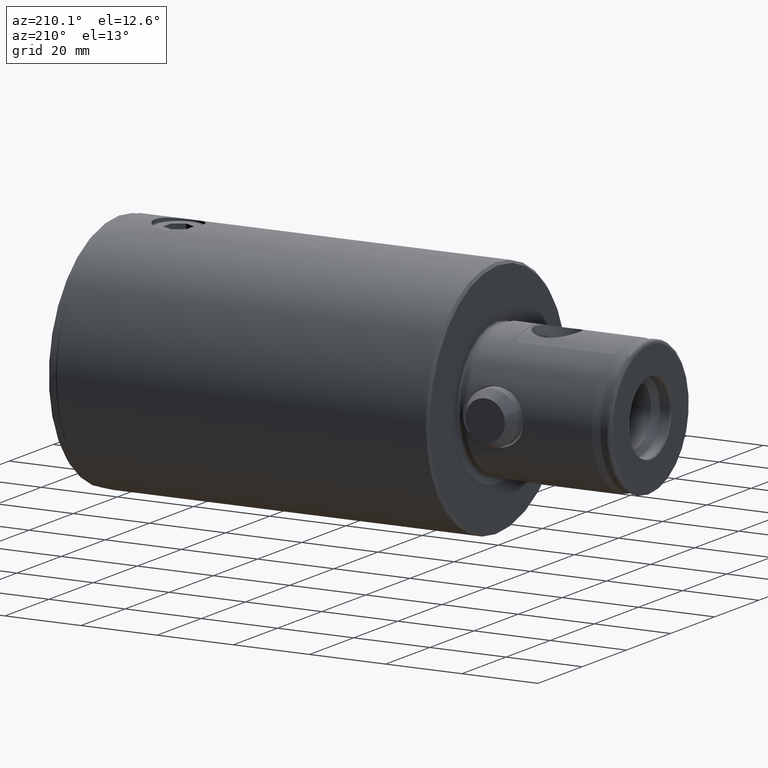
[diagram: clean part render]
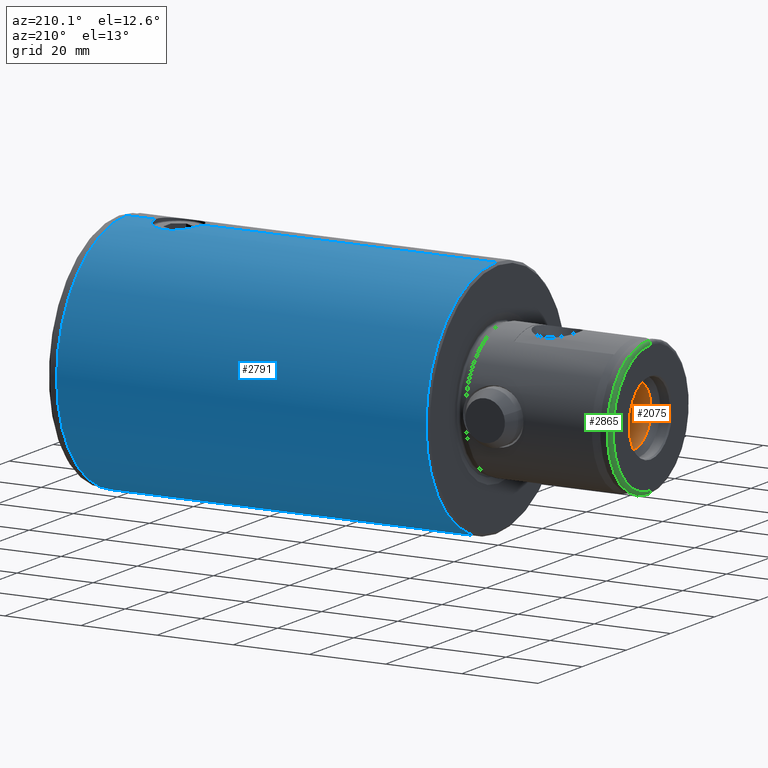
[diagram: same view with three faces highlighted in distinct colors, each labeled with its STEP entity id]
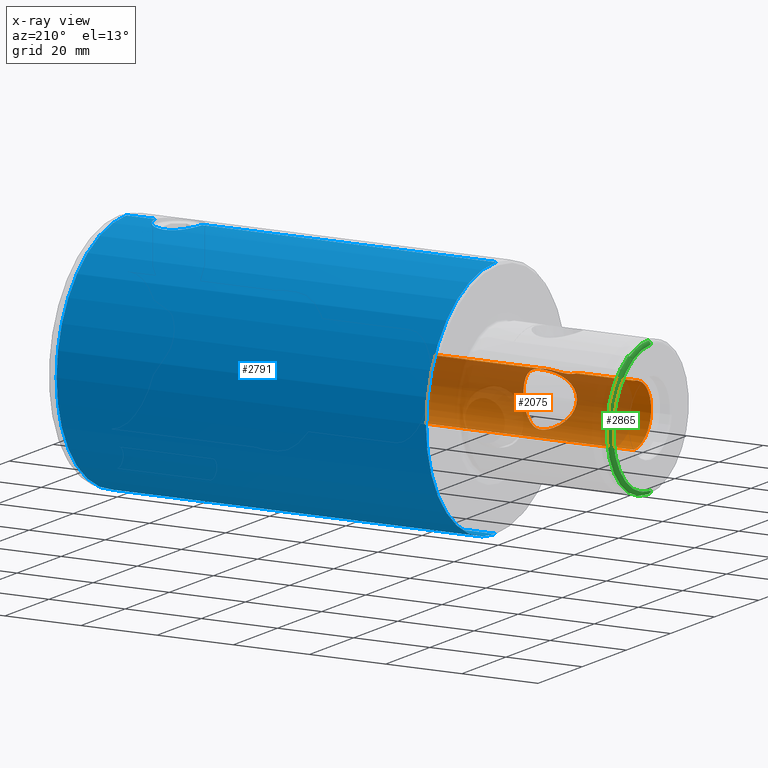
[diagram: x-ray of the same camera — body ghosted, the three highlighted faces saturated]
A machine part, auxiliary view with three faces highlighted in distinct colors.
The next image is the same camera in x-ray (body ghosted, the three faces saturated) — at least one of them is partly hidden behind the body in this view.
Their STEP definitions:

[orange] entity #2075 — the highlighted cylindrical surface (edge-blend (fillet) strip) has radius 8 mm, axis along (-1, 0, 0).
#27 = CARTESIAN_POINT ( 'NONE',  ( 4.204993759022039000, -6.808998747621740400, 103.3993214983673600 ) ) ;
#70 = CARTESIAN_POINT ( 'NONE',  ( 7.982695283076967700, -0.6025947120853478700, 111.0305637703709700 ) ) ;
#77 = CARTESIAN_POINT ( 'NONE',  ( 0.2463674248415607400, -7.999999999999974200, 102.0000000000000000 ) ) ;
#121 = VERTEX_POINT ( 'NONE', #2846 ) ;
#147 = VERTEX_POINT ( 'NONE', #3980 ) ;
#207 = ORIENTED_EDGE ( 'NONE', *, *, #1559, .T. ) ;
#225 = CARTESIAN_POINT ( 'NONE',  ( -6.609078892004234300, -4.509462832371691700, 111.3175742088378100 ) ) ;
#226 = VECTOR ( 'NONE', #2144, 1000.000000000000000 ) ;
#274 = CARTESIAN_POINT ( 'NONE',  ( -6.892891581927741200, -4.061692254694516000, 107.7573093214951400 ) ) ;
#277 = AXIS2_PLACEMENT_3D ( 'NONE', #2692, #2723, #399 ) ;
#358 = EDGE_CURVE ( 'NONE', #147, #2336, #4653, .T. ) ;
#388 = CARTESIAN_POINT ( 'NONE',  ( 6.748001086584908500, -4.301229581459347500, 107.0798754998001400 ) ) ;
#399 = DIRECTION ( 'NONE',  ( 1.000000000000000000, 0.0000000000000000000, 0.0000000000000000000 ) ) ;
#406 = CARTESIAN_POINT ( 'NONE',  ( 3.653169987805635600, -7.120640764517208500, 114.9755528362943400 ) ) ;
#436 = CARTESIAN_POINT ( 'NONE',  ( 7.426051057279917900, -2.983728094912790700, 112.1191968104907900 ) ) ;
#444 = CARTESIAN_POINT ( 'NONE',  ( 6.610445899365410000, -4.515091856288076000, 106.6560188854934100 ) ) ;
#462 = CARTESIAN_POINT ( 'NONE',  ( 6.897551808163942900, -4.053715630958561400, 110.2161564655569600 ) ) ;
#473 = VECTOR ( 'NONE', #4520, 1000.000000000000000 ) ;
#500 = CARTESIAN_POINT ( 'NONE',  ( 7.999999999999976000, 2.473867798773093000E-024, 120.0000000000000100 ) ) ;
#573 = CARTESIAN_POINT ( 'NONE',  ( 8.573049420371337400E-016, -7.999999999999976000, 102.0000000000000000 ) ) ;
#582 = ORIENTED_EDGE ( 'NONE', *, *, #1170, .T. ) ;
#597 = CARTESIAN_POINT ( 'NONE',  ( 8.573049420371337400E-016, -7.999999999999976000, 102.0000000000000000 ) ) ;
#604 = AXIS2_PLACEMENT_3D ( 'NONE', #1052, #3051, #3756 ) ;
#614 = CARTESIAN_POINT ( 'NONE',  ( -0.2458088155550404200, -7.999999999999976000, 102.0000000000000000 ) ) ;
#631 = CARTESIAN_POINT ( 'NONE',  ( -6.803260429192652800, -4.210031603183723300, 110.6646287831009800 ) ) ;
#648 = CARTESIAN_POINT ( 'NONE',  ( -2.615899199314152500, -7.563702907821755700, 102.5029231400296500 ) ) ;
#650 = EDGE_CURVE ( 'NONE', #3478, #121, #3079, .T. ) ;
#666 = CARTESIAN_POINT ( 'NONE',  ( -3.062987926734077200, -7.394015081419509800, 115.2987250917318200 ) ) ;
#699 = CARTESIAN_POINT ( 'NONE',  ( 0.5014398034479012900, -7.999999999999974200, 116.0000000000000000 ) ) ;
#763 = CARTESIAN_POINT ( 'NONE',  ( 7.999999999999983100, 0.0000000000000000000, 135.5000000000000000 ) ) ;
#786 = CARTESIAN_POINT ( 'NONE',  ( 6.352328561495827600, -4.865072888620787200, 106.0511048746683800 ) ) ;
#795 = CARTESIAN_POINT ( 'NONE',  ( 6.909623443327217500, -4.034183747653830900, 113.4849266701554700 ) ) ;
#824 = CARTESIAN_POINT ( 'NONE',  ( 6.257240187971040000, -4.987242544489388900, 105.8546750019192900 ) ) ;
#840 = CARTESIAN_POINT ( 'NONE',  ( 3.845961530444074800, -7.018070913974476400, 114.8530772132884300 ) ) ;
#864 = CARTESIAN_POINT ( 'NONE',  ( 6.909578642823397800, -4.034277688559272200, 117.5150816609265400 ) ) ;
#900 = CARTESIAN_POINT ( 'NONE',  ( 7.674210665358642400, -2.273873134536350500, 119.3940163486380500 ) ) ;
#987 = CARTESIAN_POINT ( 'NONE',  ( -6.931638555528166100, -3.994407720539663800, 107.9940837852248200 ) ) ;
#1016 = CARTESIAN_POINT ( 'NONE',  ( -5.324973614553513800, -5.973129749611985100, 113.5486823261042300 ) ) ;
#1048 = CARTESIAN_POINT ( 'NONE',  ( -1.242561612900020800, -7.906674966202420900, 115.8931968825267700 ) ) ;
#1052 = CARTESIAN_POINT ( 'NONE',  ( 0.0000000000000000000, 0.0000000000000000000, 76.15434095562781600 ) ) ;
#1123 = CARTESIAN_POINT ( 'NONE',  ( 7.249949148282697200, -3.389263193824742600, 112.5258852487584600 ) ) ;
#1147 = CARTESIAN_POINT ( 'NONE',  ( 6.526671817880727000, -4.628545511031210100, 111.5397738718268200 ) ) ;
#1156 = CARTESIAN_POINT ( 'NONE',  ( 7.999999999999976000, -1.913940388718454900E-015, 111.0000000000000000 ) ) ;
#1170 = EDGE_CURVE ( 'NONE', #4742, #2856, #3078, .T. ) ;
#1222 = CARTESIAN_POINT ( 'NONE',  ( 6.935960449576287900, -3.986871605362779300, 109.9757473504534500 ) ) ;
#1239 = DIRECTION ( 'NONE',  ( 0.0000000000000000000, 0.0000000000000000000, 1.000000000000000000 ) ) ;
#1247 = EDGE_CURVE ( 'NONE', #3040, #1973, #3841, .T. ) ;
#1386 = CARTESIAN_POINT ( 'NONE',  ( -7.999999999999976000, 9.797174393178796100E-016, 140.0000000000000000 ) ) ;
#1400 = CARTESIAN_POINT ( 'NONE',  ( -6.061504726197427800, -5.232449588818006700, 105.4726847004443900 ) ) ;
#1431 = CARTESIAN_POINT ( 'NONE',  ( -1.704558854029420100, -7.820029344542751600, 102.2063641885270600 ) ) ;
#1450 = CARTESIAN_POINT ( 'NONE',  ( -0.9956735448188064300, -7.941687555919620500, 115.9332942063287200 ) ) ;
#1467 = CARTESIAN_POINT ( 'NONE',  ( 0.9897341065845147700, -7.953313616008642000, 115.9467777991662800 ) ) ;
#1535 = EDGE_CURVE ( 'NONE', #2336, #1973, #2166, .T. ) ;
#1559 = EDGE_CURVE ( 'NONE', #2856, #3040, #3137, .T. ) ;
#1562 = CARTESIAN_POINT ( 'NONE',  ( 6.741552401771127900, -4.308927434169566700, 110.8980998342957100 ) ) ;
#1569 = CARTESIAN_POINT ( 'NONE',  ( 7.745859967436898900, -2.019681080648122200, 111.4679090826389400 ) ) ;
#1578 = CARTESIAN_POINT ( 'NONE',  ( 3.253478206159024400, -7.311861779459357900, 102.7978252874954000 ) ) ;
#1588 = CARTESIAN_POINT ( 'NONE',  ( 6.772324819382335500, -4.260651497035333100, 114.0228379048677300 ) ) ;
#1597 = CARTESIAN_POINT ( 'NONE',  ( 4.724197274312510700, -6.467662660821553700, 114.1834055405413200 ) ) ;
#1616 = CARTESIAN_POINT ( 'NONE',  ( 3.650583855692017800, -7.121915517080435800, 103.0229330675535900 ) ) ;
#1632 = CARTESIAN_POINT ( 'NONE',  ( 6.999793285552309300, -3.873356959762707300, 108.7445683922643100 ) ) ;
#1672 = CARTESIAN_POINT ( 'NONE',  ( 6.635608453231533600, -4.469203543683828000, 114.8956292763332500 ) ) ;
#1767 = CARTESIAN_POINT ( 'NONE',  ( -5.318893186772939400, -5.988019517051176500, 104.4291280184873200 ) ) ;
#1785 = CARTESIAN_POINT ( 'NONE',  ( -6.264371187509884600, -4.983950604756588900, 105.8464830160269700 ) ) ;
#1794 = ORIENTED_EDGE ( 'NONE', *, *, #3021, .F. ) ;
#1799 = CARTESIAN_POINT ( 'NONE',  ( -4.721865273748640000, -6.469234174572143600, 103.8146857626327100 ) ) ;
#1815 = CARTESIAN_POINT ( 'NONE',  ( -6.070760967329465400, -5.221468870581130500, 112.5109413621050000 ) ) ;
#1832 = CARTESIAN_POINT ( 'NONE',  ( -6.937800175768573200, -3.983658778771081500, 109.9627214351136400 ) ) ;
#1856 = CARTESIAN_POINT ( 'NONE',  ( -7.999999999999983100, 9.797174393178805900E-016, 135.5000000000000000 ) ) ;
#1910 = CARTESIAN_POINT ( 'NONE',  ( 7.999999999999976000, -0.3044265601747744300, 110.9999999999999900 ) ) ;
#1920 = CARTESIAN_POINT ( 'NONE',  ( 1.940995588507324200, -7.764595202769831100, 115.7298100651998600 ) ) ;
#1936 = CARTESIAN_POINT ( 'NONE',  ( 6.066531636867238400, -5.226439804655863800, 112.5183247307542900 ) ) ;
#1943 = CARTESIAN_POINT ( 'NONE',  ( 6.989093066803702600, -3.896902462391607100, 113.2311152339550200 ) ) ;
#1955 = CARTESIAN_POINT ( 'NONE',  ( 8.573049420371337400E-016, -7.999999999999976000, 102.0000000000000000 ) ) ;
#1973 = VERTEX_POINT ( 'NONE', #763 ) ;
#1975 = CARTESIAN_POINT ( 'NONE',  ( 4.873646926052383100, -6.347036180389363100, 103.9706704492204200 ) ) ;
#1986 = ORIENTED_EDGE ( 'NONE', *, *, #358, .F. ) ;
#1989 = CARTESIAN_POINT ( 'NONE',  ( 6.987094224917445500, -3.896563466422653800, 109.4900454490438800 ) ) ;
#1995 = CARTESIAN_POINT ( 'NONE',  ( 7.427316607046449800, -2.980626597934113800, 118.8835971200423700 ) ) ;
#2006 = CARTESIAN_POINT ( 'NONE',  ( 6.895429150598699800, -4.057348946457088900, 107.7717264069929800 ) ) ;
#2015 = CARTESIAN_POINT ( 'NONE',  ( 7.865209259094282100, -1.469505261553926600, 119.7559230329918300 ) ) ;
#2062 = CARTESIAN_POINT ( 'NONE',  ( 7.161539228183095000, -3.570157879659731700, 118.2547036344024200 ) ) ;
#2075 = ADVANCED_FACE ( 'NONE', ( #2833, #4759 ), #4443, .F. ) ;
#2144 = DIRECTION ( 'NONE',  ( 0.0000000000000000000, 0.0000000000000000000, 1.000000000000000000 ) ) ;
#2155 = CARTESIAN_POINT ( 'NONE',  ( -1.139402641566181400E-015, -7.999999999999976000, 116.0000000000000000 ) ) ;
#2166 = LINE ( 'NONE', #4444, #226 ) ;
#2170 = CARTESIAN_POINT ( 'NONE',  ( -7.000683778260085300, -3.871747512633993100, 109.2294989628375700 ) ) ;
#2185 = CARTESIAN_POINT ( 'NONE',  ( -2.392173691188048200, -7.637630267801615200, 102.4170841475349800 ) ) ;
#2199 = LINE ( 'NONE', #4123, #4539 ) ;
#2206 = CARTESIAN_POINT ( 'NONE',  ( -3.654922333002847100, -7.129012765604231900, 103.0130327456464400 ) ) ;
#2225 = CARTESIAN_POINT ( 'NONE',  ( -0.5007928561076402400, -7.988177111141951100, 115.9864970389054800 ) ) ;
#2232 = AXIS2_PLACEMENT_3D ( 'NONE', #4641, #1239, #3504 ) ;
#2237 = CARTESIAN_POINT ( 'NONE',  ( 2.618978976449604500, -7.562617211367745900, 115.4958122132766900 ) ) ;
#2308 = CARTESIAN_POINT ( 'NONE',  ( 7.999999999999976000, 2.473867798773093000E-024, 120.0000000000000100 ) ) ;
#2328 = CARTESIAN_POINT ( 'NONE',  ( 1.945759578019483000, -7.774963949146436600, 102.2581449098613900 ) ) ;
#2336 = VERTEX_POINT ( 'NONE', #2308 ) ;
#2337 = EDGE_CURVE ( 'NONE', #121, #3478, #3601, .T. ) ;
#2367 = CARTESIAN_POINT ( 'NONE',  ( 6.269568954821390400, -4.977551545163907900, 112.1438973383478700 ) ) ;
#2384 = CARTESIAN_POINT ( 'NONE',  ( 7.000202025383210900, -3.872618207624674900, 109.2439732577854000 ) ) ;
#2438 = CARTESIAN_POINT ( 'NONE',  ( 6.771719664427855000, -4.261629532956795300, 116.9746064873179700 ) ) ;
#2459 = CARTESIAN_POINT ( 'NONE',  ( 7.250812258735793500, -3.387460477435423100, 118.4762351891079500 ) ) ;
#2528 = ORIENTED_EDGE ( 'NONE', *, *, #1535, .F. ) ;
#2564 = CARTESIAN_POINT ( 'NONE',  ( -6.744805948015714300, -4.303808959618153000, 110.8864428795534300 ) ) ;
#2583 = CARTESIAN_POINT ( 'NONE',  ( -6.988097837260931500, -3.894752516071265700, 109.4758071640810600 ) ) ;
#2602 = CARTESIAN_POINT ( 'NONE',  ( -3.259015836727154000, -7.320446500796071700, 102.7872259692387600 ) ) ;
#2632 = CARTESIAN_POINT ( 'NONE',  ( -1.139402641566181400E-015, -7.999999999999976000, 116.0000000000000000 ) ) ;
#2692 = CARTESIAN_POINT ( 'NONE',  ( 0.0000000000000000000, 0.0000000000000000000, 135.5000000000000000 ) ) ;
#2716 = CARTESIAN_POINT ( 'NONE',  ( 0.4922276223738222300, -7.988643531602253500, 102.0129702137110300 ) ) ;
#2723 = DIRECTION ( 'NONE',  ( 0.0000000000000000000, 0.0000000000000000000, 1.000000000000000000 ) ) ;
#2752 = CARTESIAN_POINT ( 'NONE',  ( 0.9829308747289100500, -7.943208445127383200, 102.0649642998596400 ) ) ;
#2764 = CARTESIAN_POINT ( 'NONE',  ( 7.867489385063387400, -1.476505698798511700, 111.2389203533835300 ) ) ;
#2770 = CARTESIAN_POINT ( 'NONE',  ( 4.379417361226019000, -6.697907354937417100, 103.5347443710247600 ) ) ;
#2778 = CARTESIAN_POINT ( 'NONE',  ( 7.837418607253158400, -1.610677726800793900, 119.7044600568109600 ) ) ;
#2833 = FACE_BOUND ( 'NONE', #3184, .T. ) ;
#2846 = CARTESIAN_POINT ( 'NONE',  ( -1.139402641566181400E-015, -7.999999999999976000, 116.0000000000000000 ) ) ;
#2856 = VERTEX_POINT ( 'NONE', #4723 ) ;
#2912 = CARTESIAN_POINT ( 'NONE',  ( -3.271334716873972600, -7.303882902233369600, 115.1927695484839900 ) ) ;
#2945 = CARTESIAN_POINT ( 'NONE',  ( -5.718508594761944500, -5.597153600166624400, 113.0427554272156500 ) ) ;
#2979 = CARTESIAN_POINT ( 'NONE',  ( -4.399583621997735800, -6.694734524988196400, 114.4626013961190700 ) ) ;
#3021 = EDGE_CURVE ( 'NONE', #4742, #147, #2199, .T. ) ;
#3040 = VERTEX_POINT ( 'NONE', #1856 ) ;
#3051 = DIRECTION ( 'NONE',  ( 0.0000000000000000000, 0.0000000000000000000, -1.000000000000000000 ) ) ;
#3078 = CIRCLE ( 'NONE', #604, 7.999999999999976000 ) ;
#3079 = B_SPLINE_CURVE_WITH_KNOTS ( 'NONE', 3,
 ( #573, #614, #4067, #3320, #3690, #1431, #4100, #2185, #648, #2602, #2206, #4467, #1799, #1767, #4862, #1400, #1785, #3718, #4876, #274, #987, #4895, #3675, #2170, #2583, #1832, #3350, #631, #2564, #225, #4487, #4053, #1815, #2945, #3332, #1016, #3734, #3706, #2979, #4080, #4453, #2912, #666, #4502, #3367, #1048, #1450, #2225, #4915, #2155 ),
 .UNSPECIFIED., .F., .F.,
 ( 4, 2, 2, 2, 2, 2, 2, 2, 2, 2, 2, 2, 2, 2, 2, 2, 2, 2, 2, 2, 2, 2, 2, 2, 4 ),
 ( 0.02366462473592559300, 0.02440246748500168900, 0.02514031023407778700, 0.02587815298315388300, 0.02661599573222997800, 0.02809168123038217200, 0.02956736672853436200, 0.03104305222668655300, 0.03251873772483875000, 0.03399442322299094100, 0.03473226597206701500, 0.03547010872114309000, 0.03620795147021917100, 0.03694579421929524600, 0.03768363696837132000, 0.03842147971744739500, 0.03989716521559955000, 0.04063500796467562500, 0.04137285071375169900, 0.04284853621190382700, 0.04358637896097987400, 0.04432422171005592800, 0.04579990720820803500, 0.04653774995728409600, 0.04727559270636014900 ),
 .UNSPECIFIED. ) ;
#3100 = CARTESIAN_POINT ( 'NONE',  ( 6.052650921825958500, -5.233646891608591600, 105.4769983065530300 ) ) ;
#3137 = LINE ( 'NONE', #1386, #473 ) ;
#3143 = CARTESIAN_POINT ( 'NONE',  ( 6.713740712856338000, -4.350946883611118000, 116.6867329061975100 ) ) ;
#3151 = CARTESIAN_POINT ( 'NONE',  ( 6.985991032564085000, -3.898552373970090900, 108.4947830427421000 ) ) ;
#3158 = CARTESIAN_POINT ( 'NONE',  ( 6.990314784499014800, -3.894761946013674000, 117.7727183685996300 ) ) ;
#3168 = CARTESIAN_POINT ( 'NONE',  ( 4.394178221185331500, -6.698518907145277100, 114.4672597884085100 ) ) ;
#3184 = EDGE_LOOP ( 'NONE', ( #3458, #4548 ) ) ;
#3192 = CARTESIAN_POINT ( 'NONE',  ( 7.515197505070411000, -2.754235797467962800, 119.0704408029503600 ) ) ;
#3240 = CARTESIAN_POINT ( 'NONE',  ( 7.999999999999976000, 0.0000000000000000000, 76.15434095562781600 ) ) ;
#3295 = ORIENTED_EDGE ( 'NONE', *, *, #1247, .T. ) ;
#3320 = CARTESIAN_POINT ( 'NONE',  ( -0.9857878462270042200, -7.942900792130837200, 102.0653164957933800 ) ) ;
#3332 = CARTESIAN_POINT ( 'NONE',  ( -5.593054592634079100, -5.722880684166476300, 113.2146880339260000 ) ) ;
#3336 = DIRECTION ( 'NONE',  ( 0.0000000000000000000, 0.0000000000000000000, 1.000000000000000000 ) ) ;
#3350 = CARTESIAN_POINT ( 'NONE',  ( -6.899669814278141200, -4.050095680494891300, 110.2041170652748400 ) ) ;
#3367 = CARTESIAN_POINT ( 'NONE',  ( -1.961479672173892500, -7.771130614508340500, 115.7374392752859500 ) ) ;
#3458 = ORIENTED_EDGE ( 'NONE', *, *, #2337, .F. ) ;
#3464 = CARTESIAN_POINT ( 'NONE',  ( 6.604730887745673400, -4.515851450083741400, 111.3299874822062500 ) ) ;
#3478 = VERTEX_POINT ( 'NONE', #597 ) ;
#3479 = CARTESIAN_POINT ( 'NONE',  ( 1.229370537485626500, -7.908707812788214200, 102.1044727772611500 ) ) ;
#3504 = DIRECTION ( 'NONE',  ( 1.000000000000000000, 0.0000000000000000000, 0.0000000000000000000 ) ) ;
#3511 = CARTESIAN_POINT ( 'NONE',  ( 5.942792252127673300, -5.358417144805383900, 105.2948466964381700 ) ) ;
#3526 = CARTESIAN_POINT ( 'NONE',  ( 5.324359612356514200, -5.983301337816265600, 113.5647483613714400 ) ) ;
#3535 = CARTESIAN_POINT ( 'NONE',  ( 6.635364457717446200, -4.469562803757223300, 116.1017325966965400 ) ) ;
#3563 = CARTESIAN_POINT ( 'NONE',  ( 6.614321443244938000, -4.500083538744613400, 115.8034219192047400 ) ) ;
#3579 = EDGE_LOOP ( 'NONE', ( #582, #207, #3295, #2528, #1986, #1794 ) ) ;
#3583 = CARTESIAN_POINT ( 'NONE',  ( 6.714182377434879900, -4.350268366666217200, 114.3107946247662900 ) ) ;
#3601 = B_SPLINE_CURVE_WITH_KNOTS ( 'NONE', 3,
 ( #2632, #699, #1467, #4202, #1920, #4553, #2237, #4611, #4930, #406, #840, #3168, #1597, #3526, #4687, #1936, #2367, #1147, #3464, #1562, #4278, #462, #1222, #1989, #2384, #1632, #3151, #3838, #2006, #388, #444, #786, #824, #3100, #3511, #4700, #4297, #1975, #4260, #2770, #27, #4630, #1616, #1578, #3902, #4221, #2328, #3479, #2752, #2716, #77, #1955 ),
 .UNSPECIFIED., .F., .F.,
 ( 4, 2, 2, 2, 2, 2, 2, 2, 2, 2, 2, 2, 2, 2, 2, 2, 2, 2, 2, 2, 2, 2, 2, 2, 2, 4 ),
 ( 1.101428683183440300E-018, 0.001479039045995331400, 0.002218558568992996600, 0.002958078091990662300, 0.003697597614988328000, 0.004437117137985993300, 0.005916156183981322000, 0.007395195229976649900, 0.008874234275971981300, 0.009613753798969644800, 0.01035327332196731000, 0.01109279284496497500, 0.01183231236796264100, 0.01257183189096030600, 0.01331135141395797300, 0.01479039045995333800, 0.01552990998295100700, 0.01626942950594867400, 0.01774846855194403200, 0.01848798807494172700, 0.01922750759793942200, 0.01996702712093711300, 0.02070654664393481400, 0.02218558568993020000, 0.02292510521292789900, 0.02366462473592559300 ),
 .UNSPECIFIED. ) ;
#3675 = CARTESIAN_POINT ( 'NONE',  ( -6.999259160076633200, -3.874322311690748100, 108.7305295058438500 ) ) ;
#3690 = CARTESIAN_POINT ( 'NONE',  ( -1.229515133224963900, -7.908645419636071600, 102.1045449053054600 ) ) ;
#3706 = CARTESIAN_POINT ( 'NONE',  ( -4.729396125360366900, -6.463988571734518000, 114.1788793692780600 ) ) ;
#3718 = CARTESIAN_POINT ( 'NONE',  ( -6.604896129972623900, -4.522992053699655700, 106.6415337917656700 ) ) ;
#3734 = CARTESIAN_POINT ( 'NONE',  ( -5.181600013075545500, -6.098246083589710800, 113.7114770627184600 ) ) ;
#3756 = DIRECTION ( 'NONE',  ( -1.000000000000000000, 0.0000000000000000000, 0.0000000000000000000 ) ) ;
#3811 = CARTESIAN_POINT ( 'NONE',  ( 7.159439143323972100, -3.574311381354152900, 112.7508210258139100 ) ) ;
#3830 = CARTESIAN_POINT ( 'NONE',  ( 7.916876527829731300, -1.187270151478236200, 111.1492103952083900 ) ) ;
#3838 = CARTESIAN_POINT ( 'NONE',  ( 6.933985420167154200, -3.990316718327376700, 108.0104743187384600 ) ) ;
#3841 = CIRCLE ( 'NONE', #277, 7.999999999999983100 ) ;
#3862 = CARTESIAN_POINT ( 'NONE',  ( 7.512930682308290600, -2.760618576241270300, 111.9342694822171300 ) ) ;
#3902 = CARTESIAN_POINT ( 'NONE',  ( 3.045389376261340400, -7.401265097934310000, 102.6927694488406400 ) ) ;
#3940 = CARTESIAN_POINT ( 'NONE',  ( 7.933517296465059800, -1.039635686699293100, 119.8807877615659800 ) ) ;
#3980 = CARTESIAN_POINT ( 'NONE',  ( 7.999999999999976000, -1.913940388718454900E-015, 111.0000000000000000 ) ) ;
#4053 = CARTESIAN_POINT ( 'NONE',  ( -6.273807693239610300, -4.972258269827191800, 112.1357737417189500 ) ) ;
#4067 = CARTESIAN_POINT ( 'NONE',  ( -0.4921225029329511200, -7.988696146024617300, 102.0129098743904300 ) ) ;
#4080 = CARTESIAN_POINT ( 'NONE',  ( -3.856624243324792800, -7.012160939935284000, 114.8459846870101900 ) ) ;
#4100 = CARTESIAN_POINT ( 'NONE',  ( -1.936984396283246300, -7.765563889699628000, 102.2690737979083800 ) ) ;
#4123 = CARTESIAN_POINT ( 'NONE',  ( 7.999999999999976000, 0.0000000000000000000, 140.0000000000000000 ) ) ;
#4202 = CARTESIAN_POINT ( 'NONE',  ( 1.704223459645342300, -7.820122452281382600, 115.7937431691061200 ) ) ;
#4221 = CARTESIAN_POINT ( 'NONE',  ( 2.398648764415524800, -7.645846592546370800, 102.4069203842920900 ) ) ;
#4232 = CARTESIAN_POINT ( 'NONE',  ( 7.673621240062188600, -2.276110591496853400, 111.6070872570512800 ) ) ;
#4260 = CARTESIAN_POINT ( 'NONE',  ( 4.713681677383220900, -6.467029024477495700, 103.8202779458589800 ) ) ;
#4278 = CARTESIAN_POINT ( 'NONE',  ( 6.800424305957508700, -4.214624612219424200, 110.6761523659750800 ) ) ;
#4287 = CARTESIAN_POINT ( 'NONE',  ( 6.614435343204577900, -4.499916121531176000, 115.1941052208390300 ) ) ;
#4297 = CARTESIAN_POINT ( 'NONE',  ( 5.324559587577489600, -5.983166029645460100, 104.4354161680394000 ) ) ;
#4321 = CARTESIAN_POINT ( 'NONE',  ( 7.746157717536447300, -2.018586950015425000, 119.5326635318300000 ) ) ;
#4335 = CARTESIAN_POINT ( 'NONE',  ( 7.913231435223792700, -1.183947066242027900, 119.8440299171186800 ) ) ;
#4443 = CYLINDRICAL_SURFACE ( 'NONE', #2232, 7.999999999999976000 ) ;
#4444 = CARTESIAN_POINT ( 'NONE',  ( 7.999999999999976000, 0.0000000000000000000, 140.0000000000000000 ) ) ;
#4453 = CARTESIAN_POINT ( 'NONE',  ( -3.667543135210744200, -7.113189413387670100, 114.9666701653287900 ) ) ;
#4467 = CARTESIAN_POINT ( 'NONE',  ( -4.390962646606671300, -6.700800497592505100, 103.5299285926882100 ) ) ;
#4487 = CARTESIAN_POINT ( 'NONE',  ( -6.531346126797030700, -4.621960794984906000, 111.5278355869646800 ) ) ;
#4502 = CARTESIAN_POINT ( 'NONE',  ( -2.415402419668760900, -7.640631348610594600, 115.5870450456317400 ) ) ;
#4520 = DIRECTION ( 'NONE',  ( 0.0000000000000000000, 0.0000000000000000000, 1.000000000000000000 ) ) ;
#4539 = VECTOR ( 'NONE', #3336, 1000.000000000000000 ) ;
#4548 = ORIENTED_EDGE ( 'NONE', *, *, #650, .F. ) ;
#4553 = CARTESIAN_POINT ( 'NONE',  ( 2.398179186925284400, -7.635780190974562800, 115.5807707736760100 ) ) ;
#4611 = CARTESIAN_POINT ( 'NONE',  ( 3.046443253602710800, -7.400771140046094500, 115.3066481344544200 ) ) ;
#4630 = CARTESIAN_POINT ( 'NONE',  ( 3.840574061778594000, -7.020999026813935700, 103.1434171167772600 ) ) ;
#4641 = CARTESIAN_POINT ( 'NONE',  ( 0.0000000000000000000, 0.0000000000000000000, 140.0000000000000000 ) ) ;
#4653 = B_SPLINE_CURVE_WITH_KNOTS ( 'NONE', 3,
 ( #1156, #1910, #70, #3830, #2764, #1569, #4232, #3862, #436, #1123, #3811, #1943, #795, #1588, #3583, #1672, #4287, #3563, #3535, #3143, #2438, #864, #3158, #2062, #2459, #1995, #3192, #900, #4321, #2778, #2015, #4335, #3940, #4693, #4707, #500 ),
 .UNSPECIFIED., .F., .F.,
 ( 4, 2, 2, 2, 2, 2, 2, 2, 2, 2, 2, 2, 2, 2, 2, 2, 2, 4 ),
 ( 1.855035830877732100E-018, 0.0008991160347494626800, 0.001798232069498923600, 0.002697348104248384300, 0.003596464138997845100, 0.004495580173747306400, 0.005394696208496766800, 0.006293812243246227200, 0.007192928277995688400, 0.008092044312745150600, 0.008991160347494611000, 0.009890276382244071400, 0.01078939241699353200, 0.01168850845174299400, 0.01258762448649245300, 0.01303718250386718400, 0.01348674052124191500, 0.01438585655599138200 ),
 .UNSPECIFIED. ) ;
#4687 = CARTESIAN_POINT ( 'NONE',  ( 5.595197448291443700, -5.728197329652258100, 113.2279049808127700 ) ) ;
#4693 = CARTESIAN_POINT ( 'NONE',  ( 7.982707809462091600, -0.6021065073805483800, 119.9694566611109300 ) ) ;
#4700 = CARTESIAN_POINT ( 'NONE',  ( 5.590136760630717700, -5.733064380958772700, 104.7656011032473100 ) ) ;
#4707 = CARTESIAN_POINT ( 'NONE',  ( 7.999999999999976000, -0.3043374259424910200, 120.0000000000000400 ) ) ;
#4723 = CARTESIAN_POINT ( 'NONE',  ( -7.999999999999976000, 9.797174393178796100E-016, 76.15434095562781600 ) ) ;
#4742 = VERTEX_POINT ( 'NONE', #3240 ) ;
#4759 = FACE_OUTER_BOUND ( 'NONE', #3579, .T. ) ;
#4862 = CARTESIAN_POINT ( 'NONE',  ( -5.585760909567266500, -5.737564231133783100, 104.7593552578242400 ) ) ;
#4876 = CARTESIAN_POINT ( 'NONE',  ( -6.743036414321677400, -4.309136020521501500, 107.0618571142084500 ) ) ;
#4895 = CARTESIAN_POINT ( 'NONE',  ( -6.984839548223532400, -3.900631049966652800, 108.4789462780051100 ) ) ;
#4915 = CARTESIAN_POINT ( 'NONE',  ( -0.2501514237057747000, -7.999999999999977800, 116.0000000000000100 ) ) ;
#4930 = CARTESIAN_POINT ( 'NONE',  ( 3.253101657275645500, -7.312079421377922600, 115.2024359945572800 ) ) ;

[blue] entity #2791 — the highlighted cylindrical surface (partial cylindrical patch) has radius 31.635 mm, axis along (1, 0, -0).
#51 = CARTESIAN_POINT ( 'NONE',  ( 31.07191016115406900, 5.942489952140722000, 17.64685040383679400 ) ) ;
#71 = CARTESIAN_POINT ( 'NONE',  ( 31.18204775439134800, 5.338946606490238400, 12.97102773145408800 ) ) ;
#101 = CARTESIAN_POINT ( 'NONE',  ( 31.09252606929352000, 5.835455495480042400, 14.06714988855718900 ) ) ;
#116 = DIRECTION ( 'NONE',  ( 0.0000000000000000000, 0.0000000000000000000, 1.000000000000000000 ) ) ;
#118 = CARTESIAN_POINT ( 'NONE',  ( 31.63500000000000500, 0.4072845302803352300, 9.900000000000000400 ) ) ;
#169 = CARTESIAN_POINT ( 'NONE',  ( 31.63500000000000500, 3.874170149102652900E-015, 100.0000000000000000 ) ) ;
#171 = VERTEX_POINT ( 'NONE', #1270 ) ;
#257 = ORIENTED_EDGE ( 'NONE', *, *, #4877, .T. ) ;
#389 = CARTESIAN_POINT ( 'NONE',  ( 0.0000000000000000000, 0.0000000000000000000, 99.36500000000000900 ) ) ;
#400 = CARTESIAN_POINT ( 'NONE',  ( 31.29569019110654800, 4.629791676343304000, 20.11794673391762300 ) ) ;
#417 = CARTESIAN_POINT ( 'NONE',  ( 31.56048495932364200, 2.177931838018494700, 10.29507052814751200 ) ) ;
#433 = EDGE_CURVE ( 'NONE', #457, #1006, #4205, .T. ) ;
#457 = VERTEX_POINT ( 'NONE', #3631 ) ;
#471 = CARTESIAN_POINT ( 'NONE',  ( 31.63500000000000500, 3.874170848840997900E-015, 22.19999999999999900 ) ) ;
#732 = AXIS2_PLACEMENT_3D ( 'NONE', #2418, #116, #2807 ) ;
#733 = EDGE_LOOP ( 'NONE', ( #1907, #3113, #4378, #257, #1317, #953 ) ) ;
#797 = CARTESIAN_POINT ( 'NONE',  ( 31.63500000000000500, 5.340185186912870700E-016, 9.900000000000000400 ) ) ;
#817 = CARTESIAN_POINT ( 'NONE',  ( 31.37435868376484300, 4.062611559887214300, 20.68447396257650100 ) ) ;
#833 = CARTESIAN_POINT ( 'NONE',  ( 31.53341012735333500, 2.540023165402121900, 21.65454495846744400 ) ) ;
#851 = CARTESIAN_POINT ( 'NONE',  ( 31.41331680595156000, 3.753686359106936300, 20.93820574372203000 ) ) ;
#867 = CARTESIAN_POINT ( 'NONE',  ( 31.51823028570652200, 2.721438651765396800, 21.56877429051585100 ) ) ;
#953 = ORIENTED_EDGE ( 'NONE', *, *, #3700, .F. ) ;
#1006 = VERTEX_POINT ( 'NONE', #3855 ) ;
#1180 = CARTESIAN_POINT ( 'NONE',  ( 31.31466950416409000, 4.492775655880668900, 11.84554785345610700 ) ) ;
#1216 = VECTOR ( 'NONE', #2118, 1000.000000000000000 ) ;
#1253 = CARTESIAN_POINT ( 'NONE',  ( 31.29501158685446400, 4.627328162551338900, 11.99402949173241200 ) ) ;
#1270 = CARTESIAN_POINT ( 'NONE',  ( 31.63500000000000500, 5.340185186912870700E-016, 9.900000000000000400 ) ) ;
#1317 = ORIENTED_EDGE ( 'NONE', *, *, #433, .T. ) ;
#1563 = CARTESIAN_POINT ( 'NONE',  ( -31.63500000000000500, 0.0000000000000000000, 100.0000000000000000 ) ) ;
#1590 = CARTESIAN_POINT ( 'NONE',  ( 31.46790932865053100, 3.251501152119605100, 21.27405919057590100 ) ) ;
#1626 = CARTESIAN_POINT ( 'NONE',  ( 31.60442200919962700, 1.404697746439156800, 10.05914998501319800 ) ) ;
#1645 = CARTESIAN_POINT ( 'NONE',  ( 31.59711211062030100, 1.598294667138949100, 22.00254715721013100 ) ) ;
#1657 = CARTESIAN_POINT ( 'NONE',  ( 31.57300471210750100, 1.988975809428060300, 10.22700606288516000 ) ) ;
#1907 = ORIENTED_EDGE ( 'NONE', *, *, #3737, .T. ) ;
#1967 = CARTESIAN_POINT ( 'NONE',  ( 31.14874049685562000, 5.527538662820200300, 13.32409616178324700 ) ) ;
#1984 = CARTESIAN_POINT ( 'NONE',  ( 31.14942491159984800, 5.523712437825178500, 18.78391022404833100 ) ) ;
#1997 = CARTESIAN_POINT ( 'NONE',  ( 31.18281396341152200, 5.334440848881085300, 19.13652829644027900 ) ) ;
#2019 = CARTESIAN_POINT ( 'NONE',  ( 31.06970320628722200, 5.954251316052623400, 14.45917038773835200 ) ) ;
#2118 = DIRECTION ( 'NONE',  ( 0.0000000000000000000, 0.0000000000000000000, -1.000000000000000000 ) ) ;
#2380 = CARTESIAN_POINT ( 'NONE',  ( 31.03933390662001900, 6.110590535687920000, 15.24717318484984900 ) ) ;
#2407 = CARTESIAN_POINT ( 'NONE',  ( 31.25573948646080100, 4.889058703006093700, 19.80233541857574400 ) ) ;
#2418 = CARTESIAN_POINT ( 'NONE',  ( 0.0000000000000000000, 0.0000000000000000000, 2.365685424949242500 ) ) ;
#2420 = CARTESIAN_POINT ( 'NONE',  ( 31.03148936379957600, 6.149788037869406300, 16.45928350670573400 ) ) ;
#2503 = VECTOR ( 'NONE', #3083, 1000.000000000000000 ) ;
#2565 = B_SPLINE_CURVE_WITH_KNOTS ( 'NONE', 3,
 ( #471, #3914, #3115, #1645, #4709, #833, #867, #4305, #1590, #851, #817, #400, #2407, #1997, #1984, #3503, #3536, #51, #3180, #3552, #2420, #2746, #2380, #2019, #101, #1967, #71, #2795, #3489, #1253, #1180, #3520, #4661, #2780, #3927, #417, #1657, #3897, #1626, #4324, #118, #797 ),
 .UNSPECIFIED., .F., .F.,
 ( 4, 2, 2, 2, 2, 2, 2, 2, 2, 2, 2, 2, 2, 2, 2, 2, 2, 2, 2, 2, 4 ),
 ( 0.01927365499852501400, 0.02047794902000058000, 0.02168224304147614200, 0.02228439005221392500, 0.02288653706295170800, 0.02409083108442727100, 0.02529512510590283700, 0.02649941912737839900, 0.02710156613811618600, 0.02770371314885397200, 0.02890800717032953500, 0.03011230119180509700, 0.03131659521328066000, 0.03252088923475621900, 0.03312303624549400200, 0.03372518325623177800, 0.03492947727770734400, 0.03613377129918290300, 0.03673591830992067900, 0.03733806532065846200, 0.03854235934213402100 ),
 .UNSPECIFIED. ) ;
#2608 = CARTESIAN_POINT ( 'NONE',  ( -31.63500000000000500, 0.0000000000000000000, 99.36500000000000900 ) ) ;
#2744 = CIRCLE ( 'NONE', #4485, 31.63500000000000500 ) ;
#2746 = CARTESIAN_POINT ( 'NONE',  ( 31.03140567740606000, 6.150210299703452700, 15.64711146826387100 ) ) ;
#2780 = CARTESIAN_POINT ( 'NONE',  ( 31.48592840713793000, 3.086160683484418400, 10.71496809255282800 ) ) ;
#2791 = ADVANCED_FACE ( 'NONE', ( #4048 ), #2870, .T. ) ;
#2795 = CARTESIAN_POINT ( 'NONE',  ( 31.23694782436793500, 5.003910732990706700, 12.46895858015890800 ) ) ;
#2807 = DIRECTION ( 'NONE',  ( 1.000000000000000000, 0.0000000000000000000, 0.0000000000000000000 ) ) ;
#2868 = EDGE_CURVE ( 'NONE', #3950, #171, #2565, .T. ) ;
#2870 = CYLINDRICAL_SURFACE ( 'NONE', #3396, 31.63500000000000500 ) ;
#2996 = CARTESIAN_POINT ( 'NONE',  ( 31.63500000000000500, 3.874170149102652900E-015, 99.36500000000000900 ) ) ;
#3083 = DIRECTION ( 'NONE',  ( 0.0000000000000000000, 0.0000000000000000000, -1.000000000000000000 ) ) ;
#3113 = ORIENTED_EDGE ( 'NONE', *, *, #4753, .T. ) ;
#3115 = CARTESIAN_POINT ( 'NONE',  ( 31.62734728538004000, 0.8018374299556719800, 22.16100811959347500 ) ) ;
#3180 = CARTESIAN_POINT ( 'NONE',  ( 31.06248647552819300, 5.991390651068501300, 17.45212041427105400 ) ) ;
#3258 = CARTESIAN_POINT ( 'NONE',  ( 31.63500000000000500, 3.874170149102652900E-015, 100.0000000000000000 ) ) ;
#3323 = LINE ( 'NONE', #3258, #1216 ) ;
#3396 = AXIS2_PLACEMENT_3D ( 'NONE', #4604, #4584, #3473 ) ;
#3473 = DIRECTION ( 'NONE',  ( -1.000000000000000000, 0.0000000000000000000, 0.0000000000000000000 ) ) ;
#3489 = CARTESIAN_POINT ( 'NONE',  ( 31.25617324025321900, 4.882781023205490500, 12.30546903240185100 ) ) ;
#3503 = CARTESIAN_POINT ( 'NONE',  ( 31.10698149600216700, 5.756312952939140400, 18.22443147513556700 ) ) ;
#3520 = CARTESIAN_POINT ( 'NONE',  ( 31.37351453063046200, 4.069047553508196000, 11.42126844655091500 ) ) ;
#3536 = CARTESIAN_POINT ( 'NONE',  ( 31.09411382168062900, 5.825193004398440300, 18.03248442743812100 ) ) ;
#3552 = CARTESIAN_POINT ( 'NONE',  ( 31.03958917937318100, 6.109299508132787400, 16.86226466083124000 ) ) ;
#3631 = CARTESIAN_POINT ( 'NONE',  ( 31.63500000000000500, 3.874170149102652900E-015, 2.365685424949242500 ) ) ;
#3700 = EDGE_CURVE ( 'NONE', #4672, #1006, #3863, .T. ) ;
#3703 = VERTEX_POINT ( 'NONE', #2996 ) ;
#3730 = CARTESIAN_POINT ( 'NONE',  ( 31.63500000000000500, 3.874170848840997900E-015, 22.19999999999999900 ) ) ;
#3737 = EDGE_CURVE ( 'NONE', #4672, #3703, #2744, .T. ) ;
#3822 = DIRECTION ( 'NONE',  ( -0.0000000000000000000, -0.0000000000000000000, -1.000000000000000000 ) ) ;
#3855 = CARTESIAN_POINT ( 'NONE',  ( -31.63500000000000500, 0.0000000000000000000, 2.365685424949242500 ) ) ;
#3863 = LINE ( 'NONE', #1563, #2503 ) ;
#3897 = CARTESIAN_POINT ( 'NONE',  ( 31.59496892742647800, 1.602682063357997700, 10.10906628837210700 ) ) ;
#3914 = CARTESIAN_POINT ( 'NONE',  ( 31.63500000000001600, 0.4017978743916919600, 22.20000000000000300 ) ) ;
#3927 = CARTESIAN_POINT ( 'NONE',  ( 31.51894258575290700, 2.732576643207171000, 10.52587779306044000 ) ) ;
#3950 = VERTEX_POINT ( 'NONE', #3730 ) ;
#4048 = FACE_OUTER_BOUND ( 'NONE', #733, .T. ) ;
#4093 = DIRECTION ( 'NONE',  ( 0.0000000000000000000, 0.0000000000000000000, -1.000000000000000000 ) ) ;
#4205 = CIRCLE ( 'NONE', #732, 31.63500000000000500 ) ;
#4271 = VECTOR ( 'NONE', #4093, 1000.000000000000000 ) ;
#4305 = CARTESIAN_POINT ( 'NONE',  ( 31.48552316506234000, 3.076832738462257100, 21.37880833812854300 ) ) ;
#4324 = CARTESIAN_POINT ( 'NONE',  ( 31.62713969592306600, 0.8093360441103159000, 9.940064336559812500 ) ) ;
#4378 = ORIENTED_EDGE ( 'NONE', *, *, #2868, .T. ) ;
#4485 = AXIS2_PLACEMENT_3D ( 'NONE', #389, #3822, #4648 ) ;
#4518 = LINE ( 'NONE', #169, #4271 ) ;
#4584 = DIRECTION ( 'NONE',  ( 0.0000000000000000000, 0.0000000000000000000, -1.000000000000000000 ) ) ;
#4604 = CARTESIAN_POINT ( 'NONE',  ( 0.0000000000000000000, 0.0000000000000000000, 100.0000000000000000 ) ) ;
#4648 = DIRECTION ( 'NONE',  ( 1.000000000000000000, 0.0000000000000000000, 0.0000000000000000000 ) ) ;
#4661 = CARTESIAN_POINT ( 'NONE',  ( 31.41258791341094200, 3.759972873030992300, 11.16639915514837600 ) ) ;
#4672 = VERTEX_POINT ( 'NONE', #2608 ) ;
#4709 = CARTESIAN_POINT ( 'NONE',  ( 31.57485859250199700, 1.984771429182251100, 21.88470220859221600 ) ) ;
#4753 = EDGE_CURVE ( 'NONE', #3703, #3950, #3323, .T. ) ;
#4877 = EDGE_CURVE ( 'NONE', #171, #457, #4518, .T. ) ;

[green] entity #2865 — the highlighted toroidal blend (fillet) surface has major radius 17 mm and minor (blend) radius 1 mm.
#50 = AXIS2_PLACEMENT_3D ( 'NONE', #2547, #3566, #3194 ) ;
#52 = ORIENTED_EDGE ( 'NONE', *, *, #1897, .F. ) ;
#78 = DIRECTION ( 'NONE',  ( 1.000000000000000000, 0.0000000000000000000, 0.0000000000000000000 ) ) ;
#115 = ORIENTED_EDGE ( 'NONE', *, *, #4451, .T. ) ;
#136 = DIRECTION ( 'NONE',  ( 0.0000000000000000000, 0.0000000000000000000, 1.000000000000000000 ) ) ;
#188 = CARTESIAN_POINT ( 'NONE',  ( -16.99999999999999600, 2.143131898507867900E-015, 140.0000000000000000 ) ) ;
#221 = CARTESIAN_POINT ( 'NONE',  ( 17.21261888832964700, 5.084105004543538100, 139.3603982605403100 ) ) ;
#266 = CARTESIAN_POINT ( 'NONE',  ( 15.79663165262243000, 8.499999999999998200, 139.3457494031941900 ) ) ;
#283 = CARTESIAN_POINT ( 'NONE',  ( 15.79663165262243000, 8.499999999999998200, 139.3457494031941900 ) ) ;
#384 = EDGE_CURVE ( 'NONE', #973, #2343, #2060, .T. ) ;
#455 = AXIS2_PLACEMENT_3D ( 'NONE', #1555, #4214, #4269 ) ;
#750 = FACE_OUTER_BOUND ( 'NONE', #4429, .T. ) ;
#973 = VERTEX_POINT ( 'NONE', #2331 ) ;
#995 = CARTESIAN_POINT ( 'NONE',  ( 16.99096693161066400, 5.785599335574045400, 139.3581576907998300 ) ) ;
#1257 = AXIS2_PLACEMENT_3D ( 'NONE', #1690, #3179, #2034 ) ;
#1374 = DIRECTION ( 'NONE',  ( -1.000000000000000000, 1.224646799147353500E-016, 0.0000000000000000000 ) ) ;
#1388 = DIRECTION ( 'NONE',  ( 1.224646799147353200E-016, 1.000000000000000000, -0.0000000000000000000 ) ) ;
#1460 = CARTESIAN_POINT ( 'NONE',  ( 17.91855654738308700, 0.7409511913278163900, 139.3674465393168000 ) ) ;
#1542 = CARTESIAN_POINT ( 'NONE',  ( 16.99999999999999600, 0.0000000000000000000, 140.0000000000000000 ) ) ;
#1555 = CARTESIAN_POINT ( 'NONE',  ( 0.0000000000000000000, 0.0000000000000000000, 139.0000000000000000 ) ) ;
#1690 = CARTESIAN_POINT ( 'NONE',  ( 16.99999999999999600, 0.0000000000000000000, 139.0000000000000000 ) ) ;
#1786 = ORIENTED_EDGE ( 'NONE', *, *, #384, .F. ) ;
#1808 = CARTESIAN_POINT ( 'NONE',  ( 17.70314422804933600, 2.942110066759005000, 139.3653119877614300 ) ) ;
#1880 = CIRCLE ( 'NONE', #3187, 1.000000000000000900 ) ;
#1897 = EDGE_CURVE ( 'NONE', #4412, #973, #3996, .T. ) ;
#2034 = DIRECTION ( 'NONE',  ( 0.0000000000000000000, 0.0000000000000000000, -1.000000000000000000 ) ) ;
#2060 = CIRCLE ( 'NONE', #1257, 1.000000000000000900 ) ;
#2068 = CARTESIAN_POINT ( 'NONE',  ( 15.86663165262243100, 8.499999999999998200, 139.0000000000000000 ) ) ;
#2151 = CARTESIAN_POINT ( 'NONE',  ( 17.92999999999978300, 0.3691144895278937200, 139.3675595189897400 ) ) ;
#2160 = CARTESIAN_POINT ( 'NONE',  ( 15.86663165262242400, 8.499999999999998200, 139.0594853698088700 ) ) ;
#2304 = VERTEX_POINT ( 'NONE', #3148 ) ;
#2331 = CARTESIAN_POINT ( 'NONE',  ( 17.93000000000000000, 1.085041540952545600E-011, 139.3675595189897900 ) ) ;
#2343 = VERTEX_POINT ( 'NONE', #1542 ) ;
#2450 = CARTESIAN_POINT ( 'NONE',  ( 0.0000000000000000000, 0.0000000000000000000, 140.0000000000000000 ) ) ;
#2547 = CARTESIAN_POINT ( 'NONE',  ( 0.0000000000000000000, 0.0000000000000000000, 139.0000000000000000 ) ) ;
#2573 = CARTESIAN_POINT ( 'NONE',  ( -16.99999999999999600, 2.081899558550499900E-015, 139.0000000000000000 ) ) ;
#2590 = CARTESIAN_POINT ( 'NONE',  ( 15.86060643024838900, 8.499999999999996400, 139.1187792349972200 ) ) ;
#2619 = CIRCLE ( 'NONE', #2857, 16.99999999999999600 ) ;
#2857 = AXIS2_PLACEMENT_3D ( 'NONE', #2450, #136, #78 ) ;
#2865 = ADVANCED_FACE ( 'NONE', ( #750 ), #3174, .T. ) ;
#2924 = CARTESIAN_POINT ( 'NONE',  ( 17.93000000000000000, 1.085041540952545600E-011, 139.3675595189897900 ) ) ;
#2953 = CARTESIAN_POINT ( 'NONE',  ( 17.56871166904121400, 3.662361259201881000, 139.3639756168602200 ) ) ;
#3005 = EDGE_CURVE ( 'NONE', #3657, #2304, #3232, .T. ) ;
#3148 = CARTESIAN_POINT ( 'NONE',  ( -18.00000000000000400, 2.204364238465235800E-015, 139.0000000000000000 ) ) ;
#3174 = TOROIDAL_SURFACE ( 'NONE', #455, 16.99999999999999600, 1.000000000000000000 ) ;
#3179 = DIRECTION ( 'NONE',  ( 0.0000000000000000000, -1.000000000000000000, 0.0000000000000000000 ) ) ;
#3187 = AXIS2_PLACEMENT_3D ( 'NONE', #2573, #1388, #1374 ) ;
#3194 = DIRECTION ( 'NONE',  ( 1.000000000000000000, 0.0000000000000000000, 0.0000000000000000000 ) ) ;
#3229 = ORIENTED_EDGE ( 'NONE', *, *, #3904, .F. ) ;
#3232 = CIRCLE ( 'NONE', #50, 18.00000000000000400 ) ;
#3325 = CARTESIAN_POINT ( 'NONE',  ( 15.81922687292444600, 8.499999999999998200, 139.2917496393925200 ) ) ;
#3361 = CARTESIAN_POINT ( 'NONE',  ( 17.83870824488434400, 1.847521542121674000, 139.3666567717686200 ) ) ;
#3388 = ORIENTED_EDGE ( 'NONE', *, *, #3005, .T. ) ;
#3566 = DIRECTION ( 'NONE',  ( 0.0000000000000000000, 0.0000000000000000000, 1.000000000000000000 ) ) ;
#3657 = VERTEX_POINT ( 'NONE', #4536 ) ;
#3683 = CARTESIAN_POINT ( 'NONE',  ( 16.14747078919855700, 7.845101723602674300, 139.3494648997260900 ) ) ;
#3904 = EDGE_CURVE ( 'NONE', #2343, #4358, #2619, .T. ) ;
#3996 = B_SPLINE_CURVE_WITH_KNOTS ( 'NONE', 3,
 ( #283, #3683, #4449, #995, #221, #2953, #1808, #3361, #4859, #1460, #2151, #2924 ),
 .UNSPECIFIED., .F., .F.,
 ( 4, 2, 2, 2, 2, 4 ),
 ( 2.265434089157966900E-007, 0.002225663129928784000, 0.004451099716448652200, 0.006676536302968520300, 0.007789254596228454400, 0.008901972889488388500 ),
 .UNSPECIFIED. ) ;
#4117 = B_SPLINE_CURVE_WITH_KNOTS ( 'NONE', 3,
 ( #2068, #2160, #2590, #4902, #3325, #266 ),
 .UNSPECIFIED., .F., .F.,
 ( 4, 2, 4 ),
 ( 0.006548121248712894500, 0.006723730033991269700, 0.006899338819269644800 ),
 .UNSPECIFIED. ) ;
#4208 = ORIENTED_EDGE ( 'NONE', *, *, #4432, .F. ) ;
#4214 = DIRECTION ( 'NONE',  ( 0.0000000000000000000, 0.0000000000000000000, 1.000000000000000000 ) ) ;
#4269 = DIRECTION ( 'NONE',  ( 1.000000000000000000, 0.0000000000000000000, 0.0000000000000000000 ) ) ;
#4358 = VERTEX_POINT ( 'NONE', #188 ) ;
#4412 = VERTEX_POINT ( 'NONE', #4796 ) ;
#4429 = EDGE_LOOP ( 'NONE', ( #3388, #115, #3229, #1786, #52, #4208 ) ) ;
#4432 = EDGE_CURVE ( 'NONE', #3657, #4412, #4117, .T. ) ;
#4449 = CARTESIAN_POINT ( 'NONE',  ( 16.45733664270536800, 7.169162838992861000, 139.3526802313364200 ) ) ;
#4451 = EDGE_CURVE ( 'NONE', #2304, #4358, #1880, .T. ) ;
#4536 = CARTESIAN_POINT ( 'NONE',  ( 15.86663165262243100, 8.499999999999998200, 139.0000000000000000 ) ) ;
#4796 = CARTESIAN_POINT ( 'NONE',  ( 15.79663165262243000, 8.499999999999998200, 139.3457494031941900 ) ) ;
#4859 = CARTESIAN_POINT ( 'NONE',  ( 17.87285194226907200, 1.480283589093567100, 139.3669945866576800 ) ) ;
#4902 = CARTESIAN_POINT ( 'NONE',  ( 15.83678148760217600, 8.499999999999998200, 139.2354494092338100 ) ) ;